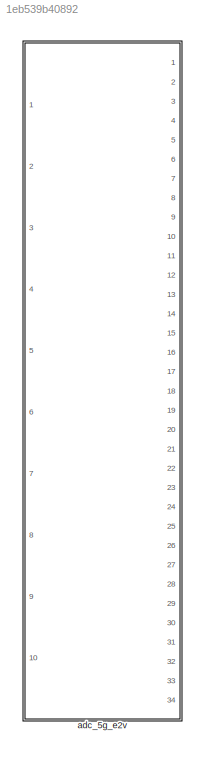
MODEL slx_1eb539b40892
KIND model
CONFIG AbsTol = auto
CONFIG EnableMultiTasking = off
CONFIG FixedStep = auto
CONFIG MaxStep = auto
CONFIG MinStep = auto
CONFIG RelTol = 1e-3
CONFIG SampleTimeConstraint = Unconstrained
CONFIG Solver = VariableStepAuto
CONFIG SolverName = VariableStepAuto
CONFIG StartTime = 0.0
CONFIG StopTime = 10.0
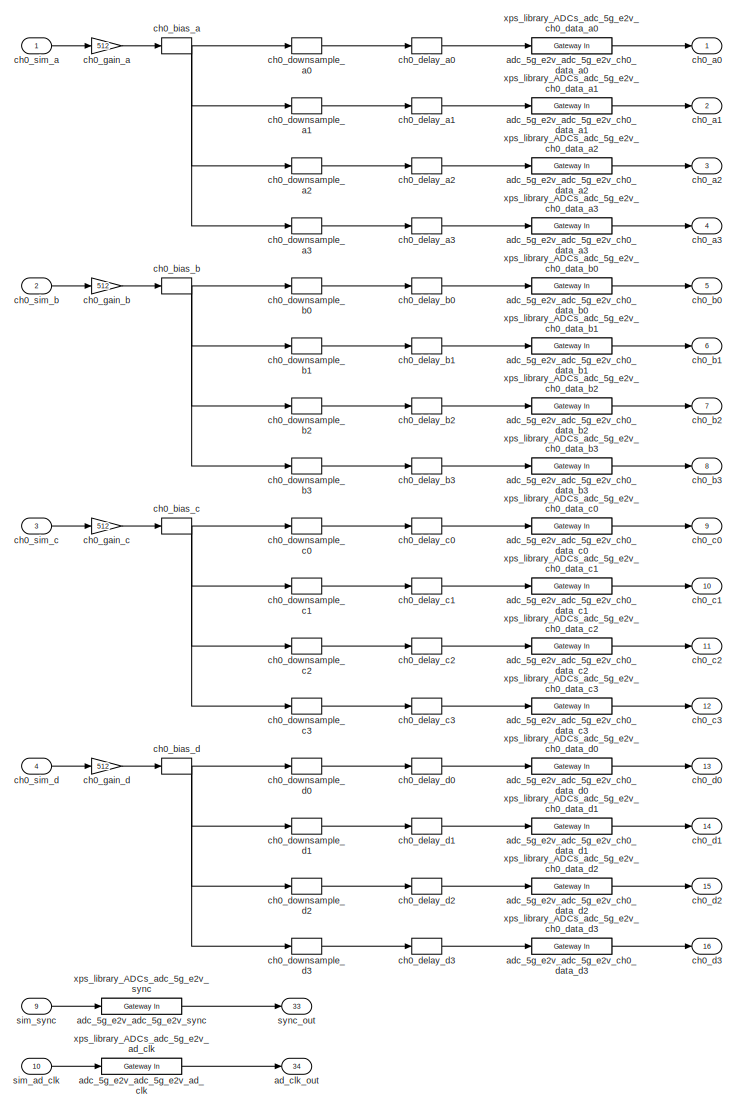
[diagram: adc_5g_e2v - part 1/2, left side, full height]
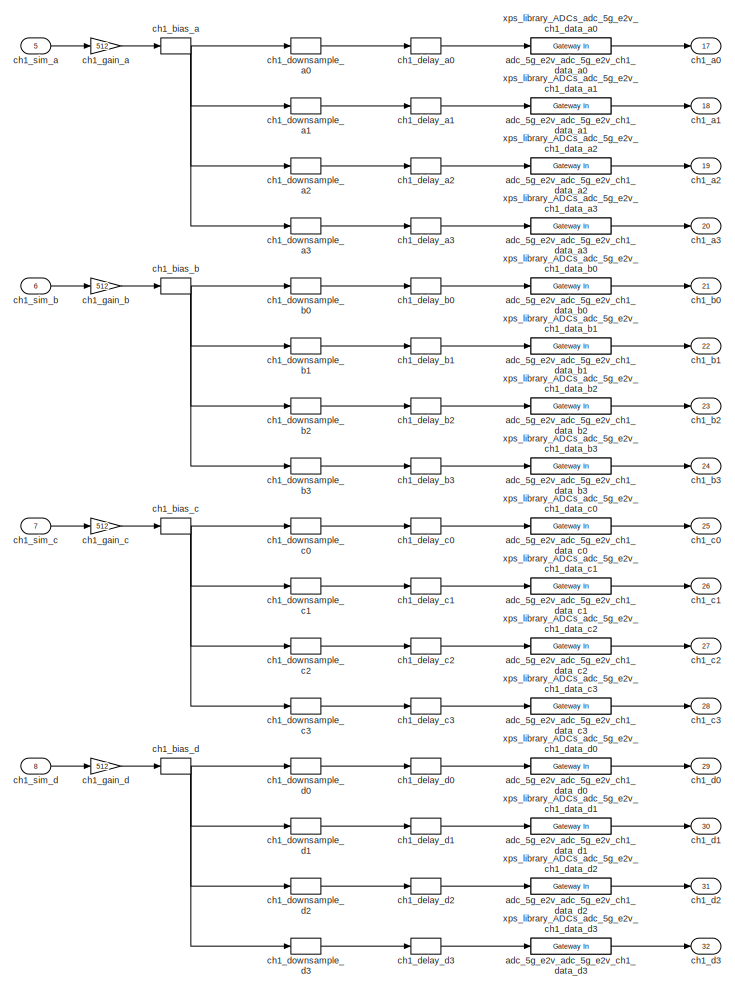
[diagram: adc_5g_e2v - part 2/2, right side, full height]
BLOCK [SubSystem] adc_5g_e2v
  Ports = [10, 34]
  RequestExecContextInheritance = off
  Tag = xps:adc_5g_e2v
  UserDataPersistent = on
BLOCK [Outport] adc_5g_e2v/ad_clk_out
  IconDisplay = Port number
  Port = 34
BLOCK [Reference] adc_5g_e2v/adc_5g_e2v_adc_5g_e2v_ad_clk  REF=xbsIndex_r4/Gateway In
  Ports = [1, 1]
  SourceBlock = xbsIndex_r4/Gateway In
  SourceType = Xilinx Gateway In Block
BLOCK [Reference] adc_5g_e2v/adc_5g_e2v_adc_5g_e2v_ch0_data_a0  REF=xbsIndex_r4/Gateway In
  Ports = [1, 1]
  SourceBlock = xbsIndex_r4/Gateway In
  SourceType = Xilinx Gateway In Block
BLOCK [Reference] adc_5g_e2v/adc_5g_e2v_adc_5g_e2v_ch0_data_a1  REF=xbsIndex_r4/Gateway In
  Ports = [1, 1]
  SourceBlock = xbsIndex_r4/Gateway In
  SourceType = Xilinx Gateway In Block
BLOCK [Reference] adc_5g_e2v/adc_5g_e2v_adc_5g_e2v_ch0_data_a2  REF=xbsIndex_r4/Gateway In
  Ports = [1, 1]
  SourceBlock = xbsIndex_r4/Gateway In
  SourceType = Xilinx Gateway In Block
BLOCK [Reference] adc_5g_e2v/adc_5g_e2v_adc_5g_e2v_ch0_data_a3  REF=xbsIndex_r4/Gateway In
  Ports = [1, 1]
  SourceBlock = xbsIndex_r4/Gateway In
  SourceType = Xilinx Gateway In Block
BLOCK [Reference] adc_5g_e2v/adc_5g_e2v_adc_5g_e2v_ch0_data_b0  REF=xbsIndex_r4/Gateway In
  Ports = [1, 1]
  SourceBlock = xbsIndex_r4/Gateway In
  SourceType = Xilinx Gateway In Block
BLOCK [Reference] adc_5g_e2v/adc_5g_e2v_adc_5g_e2v_ch0_data_b1  REF=xbsIndex_r4/Gateway In
  Ports = [1, 1]
  SourceBlock = xbsIndex_r4/Gateway In
  SourceType = Xilinx Gateway In Block
BLOCK [Reference] adc_5g_e2v/adc_5g_e2v_adc_5g_e2v_ch0_data_b2  REF=xbsIndex_r4/Gateway In
  Ports = [1, 1]
  SourceBlock = xbsIndex_r4/Gateway In
  SourceType = Xilinx Gateway In Block
BLOCK [Reference] adc_5g_e2v/adc_5g_e2v_adc_5g_e2v_ch0_data_b3  REF=xbsIndex_r4/Gateway In
  Ports = [1, 1]
  SourceBlock = xbsIndex_r4/Gateway In
  SourceType = Xilinx Gateway In Block
BLOCK [Reference] adc_5g_e2v/adc_5g_e2v_adc_5g_e2v_ch0_data_c0  REF=xbsIndex_r4/Gateway In
  Ports = [1, 1]
  SourceBlock = xbsIndex_r4/Gateway In
  SourceType = Xilinx Gateway In Block
BLOCK [Reference] adc_5g_e2v/adc_5g_e2v_adc_5g_e2v_ch0_data_c1  REF=xbsIndex_r4/Gateway In
  Ports = [1, 1]
  SourceBlock = xbsIndex_r4/Gateway In
  SourceType = Xilinx Gateway In Block
BLOCK [Reference] adc_5g_e2v/adc_5g_e2v_adc_5g_e2v_ch0_data_c2  REF=xbsIndex_r4/Gateway In
  Ports = [1, 1]
  SourceBlock = xbsIndex_r4/Gateway In
  SourceType = Xilinx Gateway In Block
BLOCK [Reference] adc_5g_e2v/adc_5g_e2v_adc_5g_e2v_ch0_data_c3  REF=xbsIndex_r4/Gateway In
  Ports = [1, 1]
  SourceBlock = xbsIndex_r4/Gateway In
  SourceType = Xilinx Gateway In Block
BLOCK [Reference] adc_5g_e2v/adc_5g_e2v_adc_5g_e2v_ch0_data_d0  REF=xbsIndex_r4/Gateway In
  Ports = [1, 1]
  SourceBlock = xbsIndex_r4/Gateway In
  SourceType = Xilinx Gateway In Block
BLOCK [Reference] adc_5g_e2v/adc_5g_e2v_adc_5g_e2v_ch0_data_d1  REF=xbsIndex_r4/Gateway In
  Ports = [1, 1]
  SourceBlock = xbsIndex_r4/Gateway In
  SourceType = Xilinx Gateway In Block
BLOCK [Reference] adc_5g_e2v/adc_5g_e2v_adc_5g_e2v_ch0_data_d2  REF=xbsIndex_r4/Gateway In
  Ports = [1, 1]
  SourceBlock = xbsIndex_r4/Gateway In
  SourceType = Xilinx Gateway In Block
BLOCK [Reference] adc_5g_e2v/adc_5g_e2v_adc_5g_e2v_ch0_data_d3  REF=xbsIndex_r4/Gateway In
  Ports = [1, 1]
  SourceBlock = xbsIndex_r4/Gateway In
  SourceType = Xilinx Gateway In Block
BLOCK [Reference] adc_5g_e2v/adc_5g_e2v_adc_5g_e2v_ch1_data_a0  REF=xbsIndex_r4/Gateway In
  Ports = [1, 1]
  SourceBlock = xbsIndex_r4/Gateway In
  SourceType = Xilinx Gateway In Block
BLOCK [Reference] adc_5g_e2v/adc_5g_e2v_adc_5g_e2v_ch1_data_a1  REF=xbsIndex_r4/Gateway In
  Ports = [1, 1]
  SourceBlock = xbsIndex_r4/Gateway In
  SourceType = Xilinx Gateway In Block
BLOCK [Reference] adc_5g_e2v/adc_5g_e2v_adc_5g_e2v_ch1_data_a2  REF=xbsIndex_r4/Gateway In
  Ports = [1, 1]
  SourceBlock = xbsIndex_r4/Gateway In
  SourceType = Xilinx Gateway In Block
BLOCK [Reference] adc_5g_e2v/adc_5g_e2v_adc_5g_e2v_ch1_data_a3  REF=xbsIndex_r4/Gateway In
  Ports = [1, 1]
  SourceBlock = xbsIndex_r4/Gateway In
  SourceType = Xilinx Gateway In Block
BLOCK [Reference] adc_5g_e2v/adc_5g_e2v_adc_5g_e2v_ch1_data_b0  REF=xbsIndex_r4/Gateway In
  Ports = [1, 1]
  SourceBlock = xbsIndex_r4/Gateway In
  SourceType = Xilinx Gateway In Block
BLOCK [Reference] adc_5g_e2v/adc_5g_e2v_adc_5g_e2v_ch1_data_b1  REF=xbsIndex_r4/Gateway In
  Ports = [1, 1]
  SourceBlock = xbsIndex_r4/Gateway In
  SourceType = Xilinx Gateway In Block
BLOCK [Reference] adc_5g_e2v/adc_5g_e2v_adc_5g_e2v_ch1_data_b2  REF=xbsIndex_r4/Gateway In
  Ports = [1, 1]
  SourceBlock = xbsIndex_r4/Gateway In
  SourceType = Xilinx Gateway In Block
BLOCK [Reference] adc_5g_e2v/adc_5g_e2v_adc_5g_e2v_ch1_data_b3  REF=xbsIndex_r4/Gateway In
  Ports = [1, 1]
  SourceBlock = xbsIndex_r4/Gateway In
  SourceType = Xilinx Gateway In Block
BLOCK [Reference] adc_5g_e2v/adc_5g_e2v_adc_5g_e2v_ch1_data_c0  REF=xbsIndex_r4/Gateway In
  Ports = [1, 1]
  SourceBlock = xbsIndex_r4/Gateway In
  SourceType = Xilinx Gateway In Block
BLOCK [Reference] adc_5g_e2v/adc_5g_e2v_adc_5g_e2v_ch1_data_c1  REF=xbsIndex_r4/Gateway In
  Ports = [1, 1]
  SourceBlock = xbsIndex_r4/Gateway In
  SourceType = Xilinx Gateway In Block
BLOCK [Reference] adc_5g_e2v/adc_5g_e2v_adc_5g_e2v_ch1_data_c2  REF=xbsIndex_r4/Gateway In
  Ports = [1, 1]
  SourceBlock = xbsIndex_r4/Gateway In
  SourceType = Xilinx Gateway In Block
BLOCK [Reference] adc_5g_e2v/adc_5g_e2v_adc_5g_e2v_ch1_data_c3  REF=xbsIndex_r4/Gateway In
  Ports = [1, 1]
  SourceBlock = xbsIndex_r4/Gateway In
  SourceType = Xilinx Gateway In Block
BLOCK [Reference] adc_5g_e2v/adc_5g_e2v_adc_5g_e2v_ch1_data_d0  REF=xbsIndex_r4/Gateway In
  Ports = [1, 1]
  SourceBlock = xbsIndex_r4/Gateway In
  SourceType = Xilinx Gateway In Block
BLOCK [Reference] adc_5g_e2v/adc_5g_e2v_adc_5g_e2v_ch1_data_d1  REF=xbsIndex_r4/Gateway In
  Ports = [1, 1]
  SourceBlock = xbsIndex_r4/Gateway In
  SourceType = Xilinx Gateway In Block
BLOCK [Reference] adc_5g_e2v/adc_5g_e2v_adc_5g_e2v_ch1_data_d2  REF=xbsIndex_r4/Gateway In
  Ports = [1, 1]
  SourceBlock = xbsIndex_r4/Gateway In
  SourceType = Xilinx Gateway In Block
BLOCK [Reference] adc_5g_e2v/adc_5g_e2v_adc_5g_e2v_ch1_data_d3  REF=xbsIndex_r4/Gateway In
  Ports = [1, 1]
  SourceBlock = xbsIndex_r4/Gateway In
  SourceType = Xilinx Gateway In Block
BLOCK [Reference] adc_5g_e2v/adc_5g_e2v_adc_5g_e2v_sync  REF=xbsIndex_r4/Gateway In
  Ports = [1, 1]
  SourceBlock = xbsIndex_r4/Gateway In
  SourceType = Xilinx Gateway In Block
BLOCK [Outport] adc_5g_e2v/ch0_a0
  IconDisplay = Port number
BLOCK [Outport] adc_5g_e2v/ch0_a1
  IconDisplay = Port number
  Port = 2
BLOCK [Outport] adc_5g_e2v/ch0_a2
  IconDisplay = Port number
  Port = 3
BLOCK [Outport] adc_5g_e2v/ch0_a3
  IconDisplay = Port number
  Port = 4
BLOCK [Outport] adc_5g_e2v/ch0_b0
  IconDisplay = Port number
  Port = 5
BLOCK [Outport] adc_5g_e2v/ch0_b1
  IconDisplay = Port number
  Port = 6
BLOCK [Outport] adc_5g_e2v/ch0_b2
  IconDisplay = Port number
  Port = 7
BLOCK [Outport] adc_5g_e2v/ch0_b3
  IconDisplay = Port number
  Port = 8
BLOCK [Bias] adc_5g_e2v/ch0_bias_a
  Bias = 512
BLOCK [Bias] adc_5g_e2v/ch0_bias_b
  Bias = 512
BLOCK [Bias] adc_5g_e2v/ch0_bias_c
  Bias = 512
BLOCK [Bias] adc_5g_e2v/ch0_bias_d
  Bias = 512
BLOCK [Outport] adc_5g_e2v/ch0_c0
  IconDisplay = Port number
  Port = 9
BLOCK [Outport] adc_5g_e2v/ch0_c1
  IconDisplay = Port number
  Port = 10
BLOCK [Outport] adc_5g_e2v/ch0_c2
  IconDisplay = Port number
  Port = 11
BLOCK [Outport] adc_5g_e2v/ch0_c3
  IconDisplay = Port number
  Port = 12
BLOCK [Outport] adc_5g_e2v/ch0_d0
  IconDisplay = Port number
  Port = 13
BLOCK [Outport] adc_5g_e2v/ch0_d1
  IconDisplay = Port number
  Port = 14
BLOCK [Outport] adc_5g_e2v/ch0_d2
  IconDisplay = Port number
  Port = 15
BLOCK [Outport] adc_5g_e2v/ch0_d3
  IconDisplay = Port number
  Port = 16
BLOCK [Delay] adc_5g_e2v/ch0_delay_a0
  InitialCondition = 0
  InputPortMap = u0
  InputProcessing = Inherited
  Ports = [1, 1]
BLOCK [Delay] adc_5g_e2v/ch0_delay_a1
  DelayLength = 1
  InitialCondition = 0
  InputPortMap = u0
  InputProcessing = Inherited
  Ports = [1, 1]
BLOCK [Delay] adc_5g_e2v/ch0_delay_a2
  DelayLength = 1
  InitialCondition = 0
  InputPortMap = u0
  InputProcessing = Inherited
  Ports = [1, 1]
BLOCK [Delay] adc_5g_e2v/ch0_delay_a3
  DelayLength = 1
  InitialCondition = 0
  InputPortMap = u0
  InputProcessing = Inherited
  Ports = [1, 1]
BLOCK [Delay] adc_5g_e2v/ch0_delay_b0
  InitialCondition = 0
  InputPortMap = u0
  InputProcessing = Inherited
  Ports = [1, 1]
BLOCK [Delay] adc_5g_e2v/ch0_delay_b1
  DelayLength = 1
  InitialCondition = 0
  InputPortMap = u0
  InputProcessing = Inherited
  Ports = [1, 1]
BLOCK [Delay] adc_5g_e2v/ch0_delay_b2
  DelayLength = 1
  InitialCondition = 0
  InputPortMap = u0
  InputProcessing = Inherited
  Ports = [1, 1]
BLOCK [Delay] adc_5g_e2v/ch0_delay_b3
  DelayLength = 1
  InitialCondition = 0
  InputPortMap = u0
  InputProcessing = Inherited
  Ports = [1, 1]
BLOCK [Delay] adc_5g_e2v/ch0_delay_c0
  InitialCondition = 0
  InputPortMap = u0
  InputProcessing = Inherited
  Ports = [1, 1]
BLOCK [Delay] adc_5g_e2v/ch0_delay_c1
  DelayLength = 1
  InitialCondition = 0
  InputPortMap = u0
  InputProcessing = Inherited
  Ports = [1, 1]
BLOCK [Delay] adc_5g_e2v/ch0_delay_c2
  DelayLength = 1
  InitialCondition = 0
  InputPortMap = u0
  InputProcessing = Inherited
  Ports = [1, 1]
BLOCK [Delay] adc_5g_e2v/ch0_delay_c3
  DelayLength = 1
  InitialCondition = 0
  InputPortMap = u0
  InputProcessing = Inherited
  Ports = [1, 1]
BLOCK [Delay] adc_5g_e2v/ch0_delay_d0
  InitialCondition = 0
  InputPortMap = u0
  InputProcessing = Inherited
  Ports = [1, 1]
BLOCK [Delay] adc_5g_e2v/ch0_delay_d1
  DelayLength = 1
  InitialCondition = 0
  InputPortMap = u0
  InputProcessing = Inherited
  Ports = [1, 1]
BLOCK [Delay] adc_5g_e2v/ch0_delay_d2
  DelayLength = 1
  InitialCondition = 0
  InputPortMap = u0
  InputProcessing = Inherited
  Ports = [1, 1]
BLOCK [Delay] adc_5g_e2v/ch0_delay_d3
  DelayLength = 1
  InitialCondition = 0
  InputPortMap = u0
  InputProcessing = Inherited
  Ports = [1, 1]
BLOCK [DownSample] adc_5g_e2v/ch0_downsample_a0
  InputProcessing = Elements as channels (sample based)
  N = 4
  RateOptions = Allow multirate processing
BLOCK [DownSample] adc_5g_e2v/ch0_downsample_a1
  InputProcessing = Elements as channels (sample based)
  N = 4
  RateOptions = Allow multirate processing
  phase = 1
BLOCK [DownSample] adc_5g_e2v/ch0_downsample_a2
  InputProcessing = Elements as channels (sample based)
  N = 4
  RateOptions = Allow multirate processing
  phase = 2
BLOCK [DownSample] adc_5g_e2v/ch0_downsample_a3
  InputProcessing = Elements as channels (sample based)
  N = 4
  RateOptions = Allow multirate processing
  phase = 3
BLOCK [DownSample] adc_5g_e2v/ch0_downsample_b0
  InputProcessing = Elements as channels (sample based)
  N = 4
  RateOptions = Allow multirate processing
BLOCK [DownSample] adc_5g_e2v/ch0_downsample_b1
  InputProcessing = Elements as channels (sample based)
  N = 4
  RateOptions = Allow multirate processing
  phase = 1
BLOCK [DownSample] adc_5g_e2v/ch0_downsample_b2
  InputProcessing = Elements as channels (sample based)
  N = 4
  RateOptions = Allow multirate processing
  phase = 2
BLOCK [DownSample] adc_5g_e2v/ch0_downsample_b3
  InputProcessing = Elements as channels (sample based)
  N = 4
  RateOptions = Allow multirate processing
  phase = 3
BLOCK [DownSample] adc_5g_e2v/ch0_downsample_c0
  InputProcessing = Elements as channels (sample based)
  N = 4
  RateOptions = Allow multirate processing
BLOCK [DownSample] adc_5g_e2v/ch0_downsample_c1
  InputProcessing = Elements as channels (sample based)
  N = 4
  RateOptions = Allow multirate processing
  phase = 1
BLOCK [DownSample] adc_5g_e2v/ch0_downsample_c2
  InputProcessing = Elements as channels (sample based)
  N = 4
  RateOptions = Allow multirate processing
  phase = 2
BLOCK [DownSample] adc_5g_e2v/ch0_downsample_c3
  InputProcessing = Elements as channels (sample based)
  N = 4
  RateOptions = Allow multirate processing
  phase = 3
BLOCK [DownSample] adc_5g_e2v/ch0_downsample_d0
  InputProcessing = Elements as channels (sample based)
  N = 4
  RateOptions = Allow multirate processing
BLOCK [DownSample] adc_5g_e2v/ch0_downsample_d1
  InputProcessing = Elements as channels (sample based)
  N = 4
  RateOptions = Allow multirate processing
  phase = 1
BLOCK [DownSample] adc_5g_e2v/ch0_downsample_d2
  InputProcessing = Elements as channels (sample based)
  N = 4
  RateOptions = Allow multirate processing
  phase = 2
BLOCK [DownSample] adc_5g_e2v/ch0_downsample_d3
  InputProcessing = Elements as channels (sample based)
  N = 4
  RateOptions = Allow multirate processing
  phase = 3
BLOCK [Gain] adc_5g_e2v/ch0_gain_a
  Gain = 512
BLOCK [Gain] adc_5g_e2v/ch0_gain_b
  Gain = 512
BLOCK [Gain] adc_5g_e2v/ch0_gain_c
  Gain = 512
BLOCK [Gain] adc_5g_e2v/ch0_gain_d
  Gain = 512
BLOCK [Inport] adc_5g_e2v/ch0_sim_a
  IconDisplay = Port number
BLOCK [Inport] adc_5g_e2v/ch0_sim_b
  IconDisplay = Port number
  Port = 2
BLOCK [Inport] adc_5g_e2v/ch0_sim_c
  IconDisplay = Port number
  Port = 3
BLOCK [Inport] adc_5g_e2v/ch0_sim_d
  IconDisplay = Port number
  Port = 4
BLOCK [Outport] adc_5g_e2v/ch1_a0
  IconDisplay = Port number
  Port = 17
BLOCK [Outport] adc_5g_e2v/ch1_a1
  IconDisplay = Port number
  Port = 18
BLOCK [Outport] adc_5g_e2v/ch1_a2
  IconDisplay = Port number
  Port = 19
BLOCK [Outport] adc_5g_e2v/ch1_a3
  IconDisplay = Port number
  Port = 20
BLOCK [Outport] adc_5g_e2v/ch1_b0
  IconDisplay = Port number
  Port = 21
BLOCK [Outport] adc_5g_e2v/ch1_b1
  IconDisplay = Port number
  Port = 22
BLOCK [Outport] adc_5g_e2v/ch1_b2
  IconDisplay = Port number
  Port = 23
BLOCK [Outport] adc_5g_e2v/ch1_b3
  IconDisplay = Port number
  Port = 24
BLOCK [Bias] adc_5g_e2v/ch1_bias_a
  Bias = 512
BLOCK [Bias] adc_5g_e2v/ch1_bias_b
  Bias = 512
BLOCK [Bias] adc_5g_e2v/ch1_bias_c
  Bias = 512
BLOCK [Bias] adc_5g_e2v/ch1_bias_d
  Bias = 512
BLOCK [Outport] adc_5g_e2v/ch1_c0
  IconDisplay = Port number
  Port = 25
BLOCK [Outport] adc_5g_e2v/ch1_c1
  IconDisplay = Port number
  Port = 26
BLOCK [Outport] adc_5g_e2v/ch1_c2
  IconDisplay = Port number
  Port = 27
BLOCK [Outport] adc_5g_e2v/ch1_c3
  IconDisplay = Port number
  Port = 28
BLOCK [Outport] adc_5g_e2v/ch1_d0
  IconDisplay = Port number
  Port = 29
BLOCK [Outport] adc_5g_e2v/ch1_d1
  IconDisplay = Port number
  Port = 30
BLOCK [Outport] adc_5g_e2v/ch1_d2
  IconDisplay = Port number
  Port = 31
BLOCK [Outport] adc_5g_e2v/ch1_d3
  IconDisplay = Port number
  Port = 32
BLOCK [Delay] adc_5g_e2v/ch1_delay_a0
  InitialCondition = 0
  InputPortMap = u0
  InputProcessing = Inherited
  Ports = [1, 1]
BLOCK [Delay] adc_5g_e2v/ch1_delay_a1
  DelayLength = 1
  InitialCondition = 0
  InputPortMap = u0
  InputProcessing = Inherited
  Ports = [1, 1]
BLOCK [Delay] adc_5g_e2v/ch1_delay_a2
  DelayLength = 1
  InitialCondition = 0
  InputPortMap = u0
  InputProcessing = Inherited
  Ports = [1, 1]
BLOCK [Delay] adc_5g_e2v/ch1_delay_a3
  DelayLength = 1
  InitialCondition = 0
  InputPortMap = u0
  InputProcessing = Inherited
  Ports = [1, 1]
BLOCK [Delay] adc_5g_e2v/ch1_delay_b0
  InitialCondition = 0
  InputPortMap = u0
  InputProcessing = Inherited
  Ports = [1, 1]
BLOCK [Delay] adc_5g_e2v/ch1_delay_b1
  DelayLength = 1
  InitialCondition = 0
  InputPortMap = u0
  InputProcessing = Inherited
  Ports = [1, 1]
BLOCK [Delay] adc_5g_e2v/ch1_delay_b2
  DelayLength = 1
  InitialCondition = 0
  InputPortMap = u0
  InputProcessing = Inherited
  Ports = [1, 1]
BLOCK [Delay] adc_5g_e2v/ch1_delay_b3
  DelayLength = 1
  InitialCondition = 0
  InputPortMap = u0
  InputProcessing = Inherited
  Ports = [1, 1]
BLOCK [Delay] adc_5g_e2v/ch1_delay_c0
  InitialCondition = 0
  InputPortMap = u0
  InputProcessing = Inherited
  Ports = [1, 1]
BLOCK [Delay] adc_5g_e2v/ch1_delay_c1
  DelayLength = 1
  InitialCondition = 0
  InputPortMap = u0
  InputProcessing = Inherited
  Ports = [1, 1]
BLOCK [Delay] adc_5g_e2v/ch1_delay_c2
  DelayLength = 1
  InitialCondition = 0
  InputPortMap = u0
  InputProcessing = Inherited
  Ports = [1, 1]
BLOCK [Delay] adc_5g_e2v/ch1_delay_c3
  DelayLength = 1
  InitialCondition = 0
  InputPortMap = u0
  InputProcessing = Inherited
  Ports = [1, 1]
BLOCK [Delay] adc_5g_e2v/ch1_delay_d0
  InitialCondition = 0
  InputPortMap = u0
  InputProcessing = Inherited
  Ports = [1, 1]
BLOCK [Delay] adc_5g_e2v/ch1_delay_d1
  DelayLength = 1
  InitialCondition = 0
  InputPortMap = u0
  InputProcessing = Inherited
  Ports = [1, 1]
BLOCK [Delay] adc_5g_e2v/ch1_delay_d2
  DelayLength = 1
  InitialCondition = 0
  InputPortMap = u0
  InputProcessing = Inherited
  Ports = [1, 1]
BLOCK [Delay] adc_5g_e2v/ch1_delay_d3
  DelayLength = 1
  InitialCondition = 0
  InputPortMap = u0
  InputProcessing = Inherited
  Ports = [1, 1]
BLOCK [DownSample] adc_5g_e2v/ch1_downsample_a0
  InputProcessing = Elements as channels (sample based)
  N = 4
  RateOptions = Allow multirate processing
BLOCK [DownSample] adc_5g_e2v/ch1_downsample_a1
  InputProcessing = Elements as channels (sample based)
  N = 4
  RateOptions = Allow multirate processing
  phase = 1
BLOCK [DownSample] adc_5g_e2v/ch1_downsample_a2
  InputProcessing = Elements as channels (sample based)
  N = 4
  RateOptions = Allow multirate processing
  phase = 2
BLOCK [DownSample] adc_5g_e2v/ch1_downsample_a3
  InputProcessing = Elements as channels (sample based)
  N = 4
  RateOptions = Allow multirate processing
  phase = 3
BLOCK [DownSample] adc_5g_e2v/ch1_downsample_b0
  InputProcessing = Elements as channels (sample based)
  N = 4
  RateOptions = Allow multirate processing
BLOCK [DownSample] adc_5g_e2v/ch1_downsample_b1
  InputProcessing = Elements as channels (sample based)
  N = 4
  RateOptions = Allow multirate processing
  phase = 1
BLOCK [DownSample] adc_5g_e2v/ch1_downsample_b2
  InputProcessing = Elements as channels (sample based)
  N = 4
  RateOptions = Allow multirate processing
  phase = 2
BLOCK [DownSample] adc_5g_e2v/ch1_downsample_b3
  InputProcessing = Elements as channels (sample based)
  N = 4
  RateOptions = Allow multirate processing
  phase = 3
BLOCK [DownSample] adc_5g_e2v/ch1_downsample_c0
  InputProcessing = Elements as channels (sample based)
  N = 4
  RateOptions = Allow multirate processing
BLOCK [DownSample] adc_5g_e2v/ch1_downsample_c1
  InputProcessing = Elements as channels (sample based)
  N = 4
  RateOptions = Allow multirate processing
  phase = 1
BLOCK [DownSample] adc_5g_e2v/ch1_downsample_c2
  InputProcessing = Elements as channels (sample based)
  N = 4
  RateOptions = Allow multirate processing
  phase = 2
BLOCK [DownSample] adc_5g_e2v/ch1_downsample_c3
  InputProcessing = Elements as channels (sample based)
  N = 4
  RateOptions = Allow multirate processing
  phase = 3
BLOCK [DownSample] adc_5g_e2v/ch1_downsample_d0
  InputProcessing = Elements as channels (sample based)
  N = 4
  RateOptions = Allow multirate processing
BLOCK [DownSample] adc_5g_e2v/ch1_downsample_d1
  InputProcessing = Elements as channels (sample based)
  N = 4
  RateOptions = Allow multirate processing
  phase = 1
BLOCK [DownSample] adc_5g_e2v/ch1_downsample_d2
  InputProcessing = Elements as channels (sample based)
  N = 4
  RateOptions = Allow multirate processing
  phase = 2
BLOCK [DownSample] adc_5g_e2v/ch1_downsample_d3
  InputProcessing = Elements as channels (sample based)
  N = 4
  RateOptions = Allow multirate processing
  phase = 3
BLOCK [Gain] adc_5g_e2v/ch1_gain_a
  Gain = 512
BLOCK [Gain] adc_5g_e2v/ch1_gain_b
  Gain = 512
BLOCK [Gain] adc_5g_e2v/ch1_gain_c
  Gain = 512
BLOCK [Gain] adc_5g_e2v/ch1_gain_d
  Gain = 512
BLOCK [Inport] adc_5g_e2v/ch1_sim_a
  IconDisplay = Port number
  Port = 5
BLOCK [Inport] adc_5g_e2v/ch1_sim_b
  IconDisplay = Port number
  Port = 6
BLOCK [Inport] adc_5g_e2v/ch1_sim_c
  IconDisplay = Port number
  Port = 7
BLOCK [Inport] adc_5g_e2v/ch1_sim_d
  IconDisplay = Port number
  Port = 8
BLOCK [Inport] adc_5g_e2v/sim_ad_clk
  IconDisplay = Port number
  Port = 10
BLOCK [Inport] adc_5g_e2v/sim_sync
  IconDisplay = Port number
  Port = 9
BLOCK [Outport] adc_5g_e2v/sync_out
  IconDisplay = Port number
  Port = 33
BLOCK [Reference] adc_5g_e2v/xps_library_ADCs_adc_5g_e2v_ad_clk  REF=xbsIndex_r4/Gateway In
  Ports = [1, 1]
  SourceBlock = xbsIndex_r4/Gateway In
  SourceType = Xilinx Gateway In Block
BLOCK [Reference] adc_5g_e2v/xps_library_ADCs_adc_5g_e2v_ch0_data_a0  REF=xbsIndex_r4/Gateway In
  Ports = [1, 1]
  SourceBlock = xbsIndex_r4/Gateway In
  SourceType = Xilinx Gateway In Block
BLOCK [Reference] adc_5g_e2v/xps_library_ADCs_adc_5g_e2v_ch0_data_a1  REF=xbsIndex_r4/Gateway In
  Ports = [1, 1]
  SourceBlock = xbsIndex_r4/Gateway In
  SourceType = Xilinx Gateway In Block
BLOCK [Reference] adc_5g_e2v/xps_library_ADCs_adc_5g_e2v_ch0_data_a2  REF=xbsIndex_r4/Gateway In
  Ports = [1, 1]
  SourceBlock = xbsIndex_r4/Gateway In
  SourceType = Xilinx Gateway In Block
BLOCK [Reference] adc_5g_e2v/xps_library_ADCs_adc_5g_e2v_ch0_data_a3  REF=xbsIndex_r4/Gateway In
  Ports = [1, 1]
  SourceBlock = xbsIndex_r4/Gateway In
  SourceType = Xilinx Gateway In Block
BLOCK [Reference] adc_5g_e2v/xps_library_ADCs_adc_5g_e2v_ch0_data_b0  REF=xbsIndex_r4/Gateway In
  Ports = [1, 1]
  SourceBlock = xbsIndex_r4/Gateway In
  SourceType = Xilinx Gateway In Block
BLOCK [Reference] adc_5g_e2v/xps_library_ADCs_adc_5g_e2v_ch0_data_b1  REF=xbsIndex_r4/Gateway In
  Ports = [1, 1]
  SourceBlock = xbsIndex_r4/Gateway In
  SourceType = Xilinx Gateway In Block
BLOCK [Reference] adc_5g_e2v/xps_library_ADCs_adc_5g_e2v_ch0_data_b2  REF=xbsIndex_r4/Gateway In
  Ports = [1, 1]
  SourceBlock = xbsIndex_r4/Gateway In
  SourceType = Xilinx Gateway In Block
BLOCK [Reference] adc_5g_e2v/xps_library_ADCs_adc_5g_e2v_ch0_data_b3  REF=xbsIndex_r4/Gateway In
  Ports = [1, 1]
  SourceBlock = xbsIndex_r4/Gateway In
  SourceType = Xilinx Gateway In Block
BLOCK [Reference] adc_5g_e2v/xps_library_ADCs_adc_5g_e2v_ch0_data_c0  REF=xbsIndex_r4/Gateway In
  Ports = [1, 1]
  SourceBlock = xbsIndex_r4/Gateway In
  SourceType = Xilinx Gateway In Block
BLOCK [Reference] adc_5g_e2v/xps_library_ADCs_adc_5g_e2v_ch0_data_c1  REF=xbsIndex_r4/Gateway In
  Ports = [1, 1]
  SourceBlock = xbsIndex_r4/Gateway In
  SourceType = Xilinx Gateway In Block
BLOCK [Reference] adc_5g_e2v/xps_library_ADCs_adc_5g_e2v_ch0_data_c2  REF=xbsIndex_r4/Gateway In
  Ports = [1, 1]
  SourceBlock = xbsIndex_r4/Gateway In
  SourceType = Xilinx Gateway In Block
BLOCK [Reference] adc_5g_e2v/xps_library_ADCs_adc_5g_e2v_ch0_data_c3  REF=xbsIndex_r4/Gateway In
  Ports = [1, 1]
  SourceBlock = xbsIndex_r4/Gateway In
  SourceType = Xilinx Gateway In Block
BLOCK [Reference] adc_5g_e2v/xps_library_ADCs_adc_5g_e2v_ch0_data_d0  REF=xbsIndex_r4/Gateway In
  Ports = [1, 1]
  SourceBlock = xbsIndex_r4/Gateway In
  SourceType = Xilinx Gateway In Block
BLOCK [Reference] adc_5g_e2v/xps_library_ADCs_adc_5g_e2v_ch0_data_d1  REF=xbsIndex_r4/Gateway In
  Ports = [1, 1]
  SourceBlock = xbsIndex_r4/Gateway In
  SourceType = Xilinx Gateway In Block
BLOCK [Reference] adc_5g_e2v/xps_library_ADCs_adc_5g_e2v_ch0_data_d2  REF=xbsIndex_r4/Gateway In
  Ports = [1, 1]
  SourceBlock = xbsIndex_r4/Gateway In
  SourceType = Xilinx Gateway In Block
BLOCK [Reference] adc_5g_e2v/xps_library_ADCs_adc_5g_e2v_ch0_data_d3  REF=xbsIndex_r4/Gateway In
  Ports = [1, 1]
  SourceBlock = xbsIndex_r4/Gateway In
  SourceType = Xilinx Gateway In Block
BLOCK [Reference] adc_5g_e2v/xps_library_ADCs_adc_5g_e2v_ch1_data_a0  REF=xbsIndex_r4/Gateway In
  Ports = [1, 1]
  SourceBlock = xbsIndex_r4/Gateway In
  SourceType = Xilinx Gateway In Block
BLOCK [Reference] adc_5g_e2v/xps_library_ADCs_adc_5g_e2v_ch1_data_a1  REF=xbsIndex_r4/Gateway In
  Ports = [1, 1]
  SourceBlock = xbsIndex_r4/Gateway In
  SourceType = Xilinx Gateway In Block
BLOCK [Reference] adc_5g_e2v/xps_library_ADCs_adc_5g_e2v_ch1_data_a2  REF=xbsIndex_r4/Gateway In
  Ports = [1, 1]
  SourceBlock = xbsIndex_r4/Gateway In
  SourceType = Xilinx Gateway In Block
BLOCK [Reference] adc_5g_e2v/xps_library_ADCs_adc_5g_e2v_ch1_data_a3  REF=xbsIndex_r4/Gateway In
  Ports = [1, 1]
  SourceBlock = xbsIndex_r4/Gateway In
  SourceType = Xilinx Gateway In Block
BLOCK [Reference] adc_5g_e2v/xps_library_ADCs_adc_5g_e2v_ch1_data_b0  REF=xbsIndex_r4/Gateway In
  Ports = [1, 1]
  SourceBlock = xbsIndex_r4/Gateway In
  SourceType = Xilinx Gateway In Block
BLOCK [Reference] adc_5g_e2v/xps_library_ADCs_adc_5g_e2v_ch1_data_b1  REF=xbsIndex_r4/Gateway In
  Ports = [1, 1]
  SourceBlock = xbsIndex_r4/Gateway In
  SourceType = Xilinx Gateway In Block
BLOCK [Reference] adc_5g_e2v/xps_library_ADCs_adc_5g_e2v_ch1_data_b2  REF=xbsIndex_r4/Gateway In
  Ports = [1, 1]
  SourceBlock = xbsIndex_r4/Gateway In
  SourceType = Xilinx Gateway In Block
BLOCK [Reference] adc_5g_e2v/xps_library_ADCs_adc_5g_e2v_ch1_data_b3  REF=xbsIndex_r4/Gateway In
  Ports = [1, 1]
  SourceBlock = xbsIndex_r4/Gateway In
  SourceType = Xilinx Gateway In Block
BLOCK [Reference] adc_5g_e2v/xps_library_ADCs_adc_5g_e2v_ch1_data_c0  REF=xbsIndex_r4/Gateway In
  Ports = [1, 1]
  SourceBlock = xbsIndex_r4/Gateway In
  SourceType = Xilinx Gateway In Block
BLOCK [Reference] adc_5g_e2v/xps_library_ADCs_adc_5g_e2v_ch1_data_c1  REF=xbsIndex_r4/Gateway In
  Ports = [1, 1]
  SourceBlock = xbsIndex_r4/Gateway In
  SourceType = Xilinx Gateway In Block
BLOCK [Reference] adc_5g_e2v/xps_library_ADCs_adc_5g_e2v_ch1_data_c2  REF=xbsIndex_r4/Gateway In
  Ports = [1, 1]
  SourceBlock = xbsIndex_r4/Gateway In
  SourceType = Xilinx Gateway In Block
BLOCK [Reference] adc_5g_e2v/xps_library_ADCs_adc_5g_e2v_ch1_data_c3  REF=xbsIndex_r4/Gateway In
  Ports = [1, 1]
  SourceBlock = xbsIndex_r4/Gateway In
  SourceType = Xilinx Gateway In Block
BLOCK [Reference] adc_5g_e2v/xps_library_ADCs_adc_5g_e2v_ch1_data_d0  REF=xbsIndex_r4/Gateway In
  Ports = [1, 1]
  SourceBlock = xbsIndex_r4/Gateway In
  SourceType = Xilinx Gateway In Block
BLOCK [Reference] adc_5g_e2v/xps_library_ADCs_adc_5g_e2v_ch1_data_d1  REF=xbsIndex_r4/Gateway In
  Ports = [1, 1]
  SourceBlock = xbsIndex_r4/Gateway In
  SourceType = Xilinx Gateway In Block
BLOCK [Reference] adc_5g_e2v/xps_library_ADCs_adc_5g_e2v_ch1_data_d2  REF=xbsIndex_r4/Gateway In
  Ports = [1, 1]
  SourceBlock = xbsIndex_r4/Gateway In
  SourceType = Xilinx Gateway In Block
BLOCK [Reference] adc_5g_e2v/xps_library_ADCs_adc_5g_e2v_ch1_data_d3  REF=xbsIndex_r4/Gateway In
  Ports = [1, 1]
  SourceBlock = xbsIndex_r4/Gateway In
  SourceType = Xilinx Gateway In Block
BLOCK [Reference] adc_5g_e2v/xps_library_ADCs_adc_5g_e2v_sync  REF=xbsIndex_r4/Gateway In
  Ports = [1, 1]
  SourceBlock = xbsIndex_r4/Gateway In
  SourceType = Xilinx Gateway In Block
LINE adc_5g_e2v/adc_5g_e2v_adc_5g_e2v_ad_clk:1 -> adc_5g_e2v/ad_clk_out:1
LINE adc_5g_e2v/adc_5g_e2v_adc_5g_e2v_ch0_data_a0:1 -> adc_5g_e2v/ch0_a0:1
LINE adc_5g_e2v/adc_5g_e2v_adc_5g_e2v_ch0_data_a1:1 -> adc_5g_e2v/ch0_a1:1
LINE adc_5g_e2v/adc_5g_e2v_adc_5g_e2v_ch0_data_a2:1 -> adc_5g_e2v/ch0_a2:1
LINE adc_5g_e2v/adc_5g_e2v_adc_5g_e2v_ch0_data_a3:1 -> adc_5g_e2v/ch0_a3:1
LINE adc_5g_e2v/adc_5g_e2v_adc_5g_e2v_ch0_data_b0:1 -> adc_5g_e2v/ch0_b0:1
LINE adc_5g_e2v/adc_5g_e2v_adc_5g_e2v_ch0_data_b1:1 -> adc_5g_e2v/ch0_b1:1
LINE adc_5g_e2v/adc_5g_e2v_adc_5g_e2v_ch0_data_b2:1 -> adc_5g_e2v/ch0_b2:1
LINE adc_5g_e2v/adc_5g_e2v_adc_5g_e2v_ch0_data_b3:1 -> adc_5g_e2v/ch0_b3:1
LINE adc_5g_e2v/adc_5g_e2v_adc_5g_e2v_ch0_data_c0:1 -> adc_5g_e2v/ch0_c0:1
LINE adc_5g_e2v/adc_5g_e2v_adc_5g_e2v_ch0_data_c1:1 -> adc_5g_e2v/ch0_c1:1
LINE adc_5g_e2v/adc_5g_e2v_adc_5g_e2v_ch0_data_c2:1 -> adc_5g_e2v/ch0_c2:1
LINE adc_5g_e2v/adc_5g_e2v_adc_5g_e2v_ch0_data_c3:1 -> adc_5g_e2v/ch0_c3:1
LINE adc_5g_e2v/adc_5g_e2v_adc_5g_e2v_ch0_data_d0:1 -> adc_5g_e2v/ch0_d0:1
LINE adc_5g_e2v/adc_5g_e2v_adc_5g_e2v_ch0_data_d1:1 -> adc_5g_e2v/ch0_d1:1
LINE adc_5g_e2v/adc_5g_e2v_adc_5g_e2v_ch0_data_d2:1 -> adc_5g_e2v/ch0_d2:1
LINE adc_5g_e2v/adc_5g_e2v_adc_5g_e2v_ch0_data_d3:1 -> adc_5g_e2v/ch0_d3:1
LINE adc_5g_e2v/adc_5g_e2v_adc_5g_e2v_ch1_data_a0:1 -> adc_5g_e2v/ch1_a0:1
LINE adc_5g_e2v/adc_5g_e2v_adc_5g_e2v_ch1_data_a1:1 -> adc_5g_e2v/ch1_a1:1
LINE adc_5g_e2v/adc_5g_e2v_adc_5g_e2v_ch1_data_a2:1 -> adc_5g_e2v/ch1_a2:1
LINE adc_5g_e2v/adc_5g_e2v_adc_5g_e2v_ch1_data_a3:1 -> adc_5g_e2v/ch1_a3:1
LINE adc_5g_e2v/adc_5g_e2v_adc_5g_e2v_ch1_data_b0:1 -> adc_5g_e2v/ch1_b0:1
LINE adc_5g_e2v/adc_5g_e2v_adc_5g_e2v_ch1_data_b1:1 -> adc_5g_e2v/ch1_b1:1
LINE adc_5g_e2v/adc_5g_e2v_adc_5g_e2v_ch1_data_b2:1 -> adc_5g_e2v/ch1_b2:1
LINE adc_5g_e2v/adc_5g_e2v_adc_5g_e2v_ch1_data_b3:1 -> adc_5g_e2v/ch1_b3:1
LINE adc_5g_e2v/adc_5g_e2v_adc_5g_e2v_ch1_data_c0:1 -> adc_5g_e2v/ch1_c0:1
LINE adc_5g_e2v/adc_5g_e2v_adc_5g_e2v_ch1_data_c1:1 -> adc_5g_e2v/ch1_c1:1
LINE adc_5g_e2v/adc_5g_e2v_adc_5g_e2v_ch1_data_c2:1 -> adc_5g_e2v/ch1_c2:1
LINE adc_5g_e2v/adc_5g_e2v_adc_5g_e2v_ch1_data_c3:1 -> adc_5g_e2v/ch1_c3:1
LINE adc_5g_e2v/adc_5g_e2v_adc_5g_e2v_ch1_data_d0:1 -> adc_5g_e2v/ch1_d0:1
LINE adc_5g_e2v/adc_5g_e2v_adc_5g_e2v_ch1_data_d1:1 -> adc_5g_e2v/ch1_d1:1
LINE adc_5g_e2v/adc_5g_e2v_adc_5g_e2v_ch1_data_d2:1 -> adc_5g_e2v/ch1_d2:1
LINE adc_5g_e2v/adc_5g_e2v_adc_5g_e2v_ch1_data_d3:1 -> adc_5g_e2v/ch1_d3:1
LINE adc_5g_e2v/adc_5g_e2v_adc_5g_e2v_sync:1 -> adc_5g_e2v/sync_out:1
NET adc_5g_e2v/ch0_bias_a:1 -> adc_5g_e2v/ch0_downsample_a0:1, adc_5g_e2v/ch0_downsample_a1:1, adc_5g_e2v/ch0_downsample_a2:1, adc_5g_e2v/ch0_downsample_a3:1
NET adc_5g_e2v/ch0_bias_b:1 -> adc_5g_e2v/ch0_downsample_b0:1, adc_5g_e2v/ch0_downsample_b1:1, adc_5g_e2v/ch0_downsample_b2:1, adc_5g_e2v/ch0_downsample_b3:1
NET adc_5g_e2v/ch0_bias_c:1 -> adc_5g_e2v/ch0_downsample_c0:1, adc_5g_e2v/ch0_downsample_c1:1, adc_5g_e2v/ch0_downsample_c2:1, adc_5g_e2v/ch0_downsample_c3:1
NET adc_5g_e2v/ch0_bias_d:1 -> adc_5g_e2v/ch0_downsample_d0:1, adc_5g_e2v/ch0_downsample_d1:1, adc_5g_e2v/ch0_downsample_d2:1, adc_5g_e2v/ch0_downsample_d3:1
LINE adc_5g_e2v/ch0_delay_a0:1 -> adc_5g_e2v/adc_5g_e2v_adc_5g_e2v_ch0_data_a0:1
LINE adc_5g_e2v/ch0_delay_a1:1 -> adc_5g_e2v/adc_5g_e2v_adc_5g_e2v_ch0_data_a1:1
LINE adc_5g_e2v/ch0_delay_a2:1 -> adc_5g_e2v/adc_5g_e2v_adc_5g_e2v_ch0_data_a2:1
LINE adc_5g_e2v/ch0_delay_a3:1 -> adc_5g_e2v/adc_5g_e2v_adc_5g_e2v_ch0_data_a3:1
LINE adc_5g_e2v/ch0_delay_b0:1 -> adc_5g_e2v/adc_5g_e2v_adc_5g_e2v_ch0_data_b0:1
LINE adc_5g_e2v/ch0_delay_b1:1 -> adc_5g_e2v/adc_5g_e2v_adc_5g_e2v_ch0_data_b1:1
LINE adc_5g_e2v/ch0_delay_b2:1 -> adc_5g_e2v/adc_5g_e2v_adc_5g_e2v_ch0_data_b2:1
LINE adc_5g_e2v/ch0_delay_b3:1 -> adc_5g_e2v/adc_5g_e2v_adc_5g_e2v_ch0_data_b3:1
LINE adc_5g_e2v/ch0_delay_c0:1 -> adc_5g_e2v/adc_5g_e2v_adc_5g_e2v_ch0_data_c0:1
LINE adc_5g_e2v/ch0_delay_c1:1 -> adc_5g_e2v/adc_5g_e2v_adc_5g_e2v_ch0_data_c1:1
LINE adc_5g_e2v/ch0_delay_c2:1 -> adc_5g_e2v/adc_5g_e2v_adc_5g_e2v_ch0_data_c2:1
LINE adc_5g_e2v/ch0_delay_c3:1 -> adc_5g_e2v/adc_5g_e2v_adc_5g_e2v_ch0_data_c3:1
LINE adc_5g_e2v/ch0_delay_d0:1 -> adc_5g_e2v/adc_5g_e2v_adc_5g_e2v_ch0_data_d0:1
LINE adc_5g_e2v/ch0_delay_d1:1 -> adc_5g_e2v/adc_5g_e2v_adc_5g_e2v_ch0_data_d1:1
LINE adc_5g_e2v/ch0_delay_d2:1 -> adc_5g_e2v/adc_5g_e2v_adc_5g_e2v_ch0_data_d2:1
LINE adc_5g_e2v/ch0_delay_d3:1 -> adc_5g_e2v/adc_5g_e2v_adc_5g_e2v_ch0_data_d3:1
LINE adc_5g_e2v/ch0_downsample_a0:1 -> adc_5g_e2v/ch0_delay_a0:1
LINE adc_5g_e2v/ch0_downsample_a1:1 -> adc_5g_e2v/ch0_delay_a1:1
LINE adc_5g_e2v/ch0_downsample_a2:1 -> adc_5g_e2v/ch0_delay_a2:1
LINE adc_5g_e2v/ch0_downsample_a3:1 -> adc_5g_e2v/ch0_delay_a3:1
LINE adc_5g_e2v/ch0_downsample_b0:1 -> adc_5g_e2v/ch0_delay_b0:1
LINE adc_5g_e2v/ch0_downsample_b1:1 -> adc_5g_e2v/ch0_delay_b1:1
LINE adc_5g_e2v/ch0_downsample_b2:1 -> adc_5g_e2v/ch0_delay_b2:1
LINE adc_5g_e2v/ch0_downsample_b3:1 -> adc_5g_e2v/ch0_delay_b3:1
LINE adc_5g_e2v/ch0_downsample_c0:1 -> adc_5g_e2v/ch0_delay_c0:1
LINE adc_5g_e2v/ch0_downsample_c1:1 -> adc_5g_e2v/ch0_delay_c1:1
LINE adc_5g_e2v/ch0_downsample_c2:1 -> adc_5g_e2v/ch0_delay_c2:1
LINE adc_5g_e2v/ch0_downsample_c3:1 -> adc_5g_e2v/ch0_delay_c3:1
LINE adc_5g_e2v/ch0_downsample_d0:1 -> adc_5g_e2v/ch0_delay_d0:1
LINE adc_5g_e2v/ch0_downsample_d1:1 -> adc_5g_e2v/ch0_delay_d1:1
LINE adc_5g_e2v/ch0_downsample_d2:1 -> adc_5g_e2v/ch0_delay_d2:1
LINE adc_5g_e2v/ch0_downsample_d3:1 -> adc_5g_e2v/ch0_delay_d3:1
LINE adc_5g_e2v/ch0_gain_a:1 -> adc_5g_e2v/ch0_bias_a:1
LINE adc_5g_e2v/ch0_gain_b:1 -> adc_5g_e2v/ch0_bias_b:1
LINE adc_5g_e2v/ch0_gain_c:1 -> adc_5g_e2v/ch0_bias_c:1
LINE adc_5g_e2v/ch0_gain_d:1 -> adc_5g_e2v/ch0_bias_d:1
LINE adc_5g_e2v/ch0_sim_a:1 -> adc_5g_e2v/ch0_gain_a:1
LINE adc_5g_e2v/ch0_sim_b:1 -> adc_5g_e2v/ch0_gain_b:1
LINE adc_5g_e2v/ch0_sim_c:1 -> adc_5g_e2v/ch0_gain_c:1
LINE adc_5g_e2v/ch0_sim_d:1 -> adc_5g_e2v/ch0_gain_d:1
NET adc_5g_e2v/ch1_bias_a:1 -> adc_5g_e2v/ch1_downsample_a0:1, adc_5g_e2v/ch1_downsample_a1:1, adc_5g_e2v/ch1_downsample_a2:1, adc_5g_e2v/ch1_downsample_a3:1
NET adc_5g_e2v/ch1_bias_b:1 -> adc_5g_e2v/ch1_downsample_b0:1, adc_5g_e2v/ch1_downsample_b1:1, adc_5g_e2v/ch1_downsample_b2:1, adc_5g_e2v/ch1_downsample_b3:1
NET adc_5g_e2v/ch1_bias_c:1 -> adc_5g_e2v/ch1_downsample_c0:1, adc_5g_e2v/ch1_downsample_c1:1, adc_5g_e2v/ch1_downsample_c2:1, adc_5g_e2v/ch1_downsample_c3:1
NET adc_5g_e2v/ch1_bias_d:1 -> adc_5g_e2v/ch1_downsample_d0:1, adc_5g_e2v/ch1_downsample_d1:1, adc_5g_e2v/ch1_downsample_d2:1, adc_5g_e2v/ch1_downsample_d3:1
LINE adc_5g_e2v/ch1_delay_a0:1 -> adc_5g_e2v/adc_5g_e2v_adc_5g_e2v_ch1_data_a0:1
LINE adc_5g_e2v/ch1_delay_a1:1 -> adc_5g_e2v/adc_5g_e2v_adc_5g_e2v_ch1_data_a1:1
LINE adc_5g_e2v/ch1_delay_a2:1 -> adc_5g_e2v/adc_5g_e2v_adc_5g_e2v_ch1_data_a2:1
LINE adc_5g_e2v/ch1_delay_a3:1 -> adc_5g_e2v/adc_5g_e2v_adc_5g_e2v_ch1_data_a3:1
LINE adc_5g_e2v/ch1_delay_b0:1 -> adc_5g_e2v/adc_5g_e2v_adc_5g_e2v_ch1_data_b0:1
LINE adc_5g_e2v/ch1_delay_b1:1 -> adc_5g_e2v/adc_5g_e2v_adc_5g_e2v_ch1_data_b1:1
LINE adc_5g_e2v/ch1_delay_b2:1 -> adc_5g_e2v/adc_5g_e2v_adc_5g_e2v_ch1_data_b2:1
LINE adc_5g_e2v/ch1_delay_b3:1 -> adc_5g_e2v/adc_5g_e2v_adc_5g_e2v_ch1_data_b3:1
LINE adc_5g_e2v/ch1_delay_c0:1 -> adc_5g_e2v/adc_5g_e2v_adc_5g_e2v_ch1_data_c0:1
LINE adc_5g_e2v/ch1_delay_c1:1 -> adc_5g_e2v/adc_5g_e2v_adc_5g_e2v_ch1_data_c1:1
LINE adc_5g_e2v/ch1_delay_c2:1 -> adc_5g_e2v/adc_5g_e2v_adc_5g_e2v_ch1_data_c2:1
LINE adc_5g_e2v/ch1_delay_c3:1 -> adc_5g_e2v/adc_5g_e2v_adc_5g_e2v_ch1_data_c3:1
LINE adc_5g_e2v/ch1_delay_d0:1 -> adc_5g_e2v/adc_5g_e2v_adc_5g_e2v_ch1_data_d0:1
LINE adc_5g_e2v/ch1_delay_d1:1 -> adc_5g_e2v/adc_5g_e2v_adc_5g_e2v_ch1_data_d1:1
LINE adc_5g_e2v/ch1_delay_d2:1 -> adc_5g_e2v/adc_5g_e2v_adc_5g_e2v_ch1_data_d2:1
LINE adc_5g_e2v/ch1_delay_d3:1 -> adc_5g_e2v/adc_5g_e2v_adc_5g_e2v_ch1_data_d3:1
LINE adc_5g_e2v/ch1_downsample_a0:1 -> adc_5g_e2v/ch1_delay_a0:1
LINE adc_5g_e2v/ch1_downsample_a1:1 -> adc_5g_e2v/ch1_delay_a1:1
LINE adc_5g_e2v/ch1_downsample_a2:1 -> adc_5g_e2v/ch1_delay_a2:1
LINE adc_5g_e2v/ch1_downsample_a3:1 -> adc_5g_e2v/ch1_delay_a3:1
LINE adc_5g_e2v/ch1_downsample_b0:1 -> adc_5g_e2v/ch1_delay_b0:1
LINE adc_5g_e2v/ch1_downsample_b1:1 -> adc_5g_e2v/ch1_delay_b1:1
LINE adc_5g_e2v/ch1_downsample_b2:1 -> adc_5g_e2v/ch1_delay_b2:1
LINE adc_5g_e2v/ch1_downsample_b3:1 -> adc_5g_e2v/ch1_delay_b3:1
LINE adc_5g_e2v/ch1_downsample_c0:1 -> adc_5g_e2v/ch1_delay_c0:1
LINE adc_5g_e2v/ch1_downsample_c1:1 -> adc_5g_e2v/ch1_delay_c1:1
LINE adc_5g_e2v/ch1_downsample_c2:1 -> adc_5g_e2v/ch1_delay_c2:1
LINE adc_5g_e2v/ch1_downsample_c3:1 -> adc_5g_e2v/ch1_delay_c3:1
LINE adc_5g_e2v/ch1_downsample_d0:1 -> adc_5g_e2v/ch1_delay_d0:1
LINE adc_5g_e2v/ch1_downsample_d1:1 -> adc_5g_e2v/ch1_delay_d1:1
LINE adc_5g_e2v/ch1_downsample_d2:1 -> adc_5g_e2v/ch1_delay_d2:1
LINE adc_5g_e2v/ch1_downsample_d3:1 -> adc_5g_e2v/ch1_delay_d3:1
LINE adc_5g_e2v/ch1_gain_a:1 -> adc_5g_e2v/ch1_bias_a:1
LINE adc_5g_e2v/ch1_gain_b:1 -> adc_5g_e2v/ch1_bias_b:1
LINE adc_5g_e2v/ch1_gain_c:1 -> adc_5g_e2v/ch1_bias_c:1
LINE adc_5g_e2v/ch1_gain_d:1 -> adc_5g_e2v/ch1_bias_d:1
LINE adc_5g_e2v/ch1_sim_a:1 -> adc_5g_e2v/ch1_gain_a:1
LINE adc_5g_e2v/ch1_sim_b:1 -> adc_5g_e2v/ch1_gain_b:1
LINE adc_5g_e2v/ch1_sim_c:1 -> adc_5g_e2v/ch1_gain_c:1
LINE adc_5g_e2v/ch1_sim_d:1 -> adc_5g_e2v/ch1_gain_d:1
LINE adc_5g_e2v/sim_ad_clk:1 -> adc_5g_e2v/adc_5g_e2v_adc_5g_e2v_ad_clk:1
LINE adc_5g_e2v/sim_sync:1 -> adc_5g_e2v/adc_5g_e2v_adc_5g_e2v_sync:1
note: NET lines group one-source signal fan-out (src -> all destinations, sorted); 1:1 wires keep LINE
